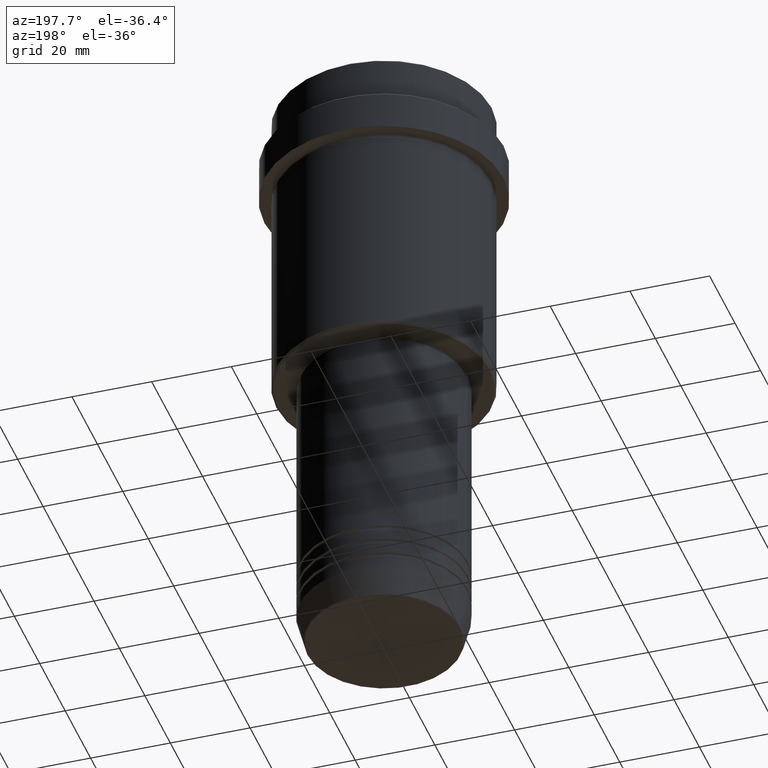
[diagram: clean part render]
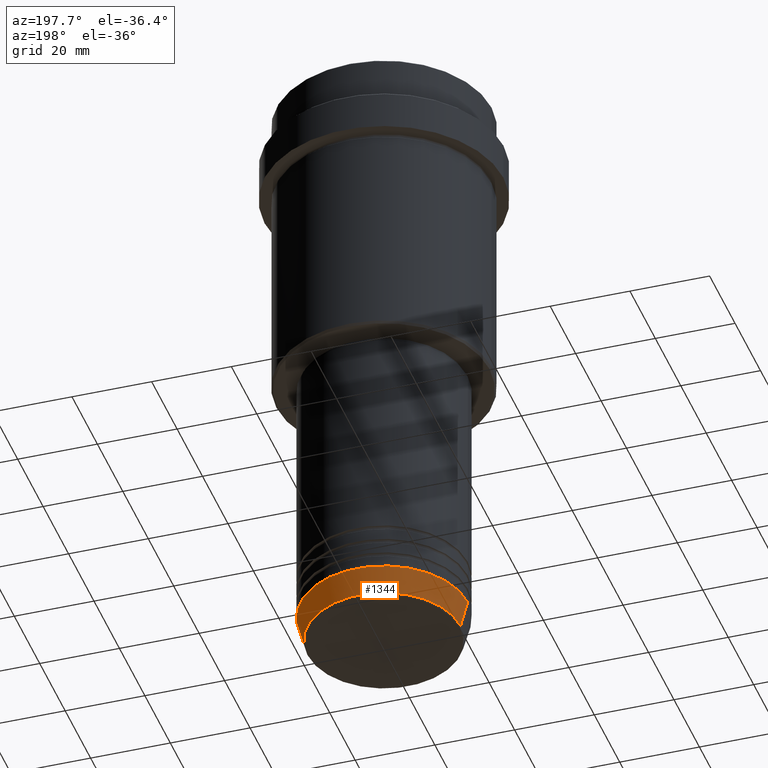
[diagram: same view with one face highlighted and labeled with its STEP entity id]
A machine part, auxiliary view. The second image highlights one B-rep face of the part: STEP entity #1344.
In plain terms, the highlighted conical surface has half-angle 15 deg.
Its self-contained STEP definition (entity closure, byte-faithful):
#6 = EDGE_LOOP ( 'NONE', ( #146, #1002, #1034, #51 ) ) ;
#31 = VERTEX_POINT ( 'NONE', #288 ) ;
#39 = CIRCLE ( 'NONE', #56, 19.22365507213718416 ) ;
#51 = ORIENTED_EDGE ( 'NONE', *, *, #132, .F. ) ;
#56 = AXIS2_PLACEMENT_3D ( 'NONE', #536, #979, #431 ) ;
#129 = DIRECTION ( 'NONE',  ( -0.2588190451025213501, 3.169619151431772337E-17, 0.9659258262890680902 ) ) ;
#132 = EDGE_CURVE ( 'NONE', #1366, #1076, #450, .T. ) ;
#146 = ORIENTED_EDGE ( 'NONE', *, *, #1008, .T. ) ;
#186 = CARTESIAN_POINT ( 'NONE',  ( 0.000000000000000000, 0.000000000000000000, -146.0000000000000000 ) ) ;
#243 = CARTESIAN_POINT ( 'NONE',  ( 0.000000000000000000, 0.000000000000000000, -146.0000000000000000 ) ) ;
#288 = CARTESIAN_POINT ( 'NONE',  ( -21.00000000000000000, 2.571758278209441661E-15, -146.0000000000000000 ) ) ;
#357 = CONICAL_SURFACE ( 'NONE', #1231, 21.00000000000000000, 0.2617993877991500740 ) ;
#431 = DIRECTION ( 'NONE',  ( 1.000000000000000000, 0.000000000000000000, 0.000000000000000000 ) ) ;
#450 = LINE ( 'NONE', #885, #1380 ) ;
#536 = CARTESIAN_POINT ( 'NONE',  ( 0.000000000000000000, 0.000000000000000000, -152.6294095225512706 ) ) ;
#595 = DIRECTION ( 'NONE',  ( 1.000000000000000000, 0.000000000000000000, 0.000000000000000000 ) ) ;
#619 = DIRECTION ( 'NONE',  ( -0.000000000000000000, -0.000000000000000000, 1.000000000000000000 ) ) ;
#652 = DIRECTION ( 'NONE',  ( 1.000000000000000000, 0.000000000000000000, 0.000000000000000000 ) ) ;
#689 = AXIS2_PLACEMENT_3D ( 'NONE', #243, #1264, #595 ) ;
#745 = CARTESIAN_POINT ( 'NONE',  ( 19.22365507213718416, 0.000000000000000000, -152.6294095225512706 ) ) ;
#885 = CARTESIAN_POINT ( 'NONE',  ( 21.00000000000000000, 0.000000000000000000, -146.0000000000000000 ) ) ;
#903 = VECTOR ( 'NONE', #129, 1000.000000000000000 ) ;
#927 = CARTESIAN_POINT ( 'NONE',  ( 21.00000000000000000, 0.000000000000000000, -146.0000000000000000 ) ) ;
#979 = DIRECTION ( 'NONE',  ( -0.000000000000000000, -0.000000000000000000, 1.000000000000000000 ) ) ;
#1001 = CARTESIAN_POINT ( 'NONE',  ( -21.00000000000000000, 2.571758278209441661E-15, -146.0000000000000000 ) ) ;
#1002 = ORIENTED_EDGE ( 'NONE', *, *, #1388, .T. ) ;
#1008 = EDGE_CURVE ( 'NONE', #1366, #1186, #39, .T. ) ;
#1034 = ORIENTED_EDGE ( 'NONE', *, *, #1096, .F. ) ;
#1076 = VERTEX_POINT ( 'NONE', #927 ) ;
#1096 = EDGE_CURVE ( 'NONE', #1076, #31, #1253, .T. ) ;
#1114 = LINE ( 'NONE', #1001, #903 ) ;
#1186 = VERTEX_POINT ( 'NONE', #1334 ) ;
#1231 = AXIS2_PLACEMENT_3D ( 'NONE', #186, #619, #652 ) ;
#1253 = CIRCLE ( 'NONE', #689, 21.00000000000000000 ) ;
#1264 = DIRECTION ( 'NONE',  ( -0.000000000000000000, -0.000000000000000000, 1.000000000000000000 ) ) ;
#1282 = FACE_OUTER_BOUND ( 'NONE', #6, .T. ) ;
#1334 = CARTESIAN_POINT ( 'NONE',  ( -19.22365507213718416, 2.462988521705000261E-15, -152.6294095225512706 ) ) ;
#1344 = ADVANCED_FACE ( 'NONE', ( #1282 ), #357, .T. ) ;
#1366 = VERTEX_POINT ( 'NONE', #745 ) ;
#1380 = VECTOR ( 'NONE', #1408, 1000.000000000000000 ) ;
#1388 = EDGE_CURVE ( 'NONE', #1186, #31, #1114, .T. ) ;
#1408 = DIRECTION ( 'NONE',  ( 0.2588190451025213501, 0.000000000000000000, 0.9659258262890680902 ) ) ;